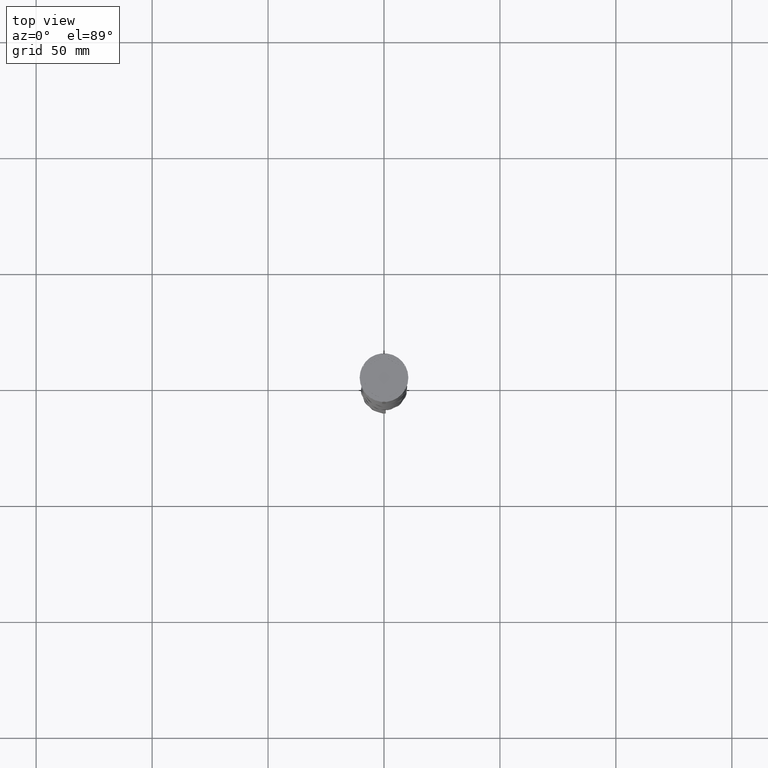
[diagram: clean part render]
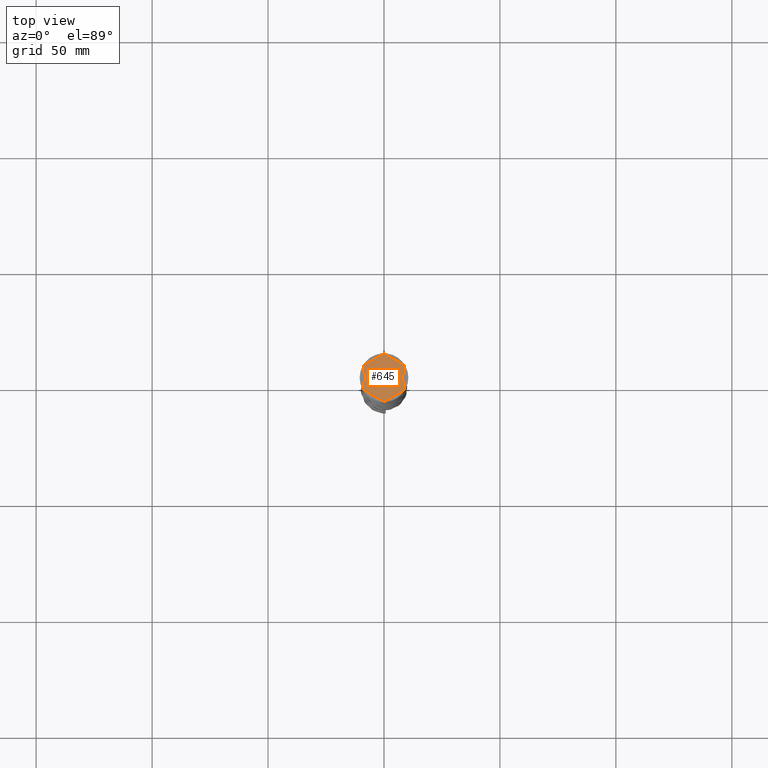
[diagram: same view with one face highlighted and labeled with its STEP entity id]
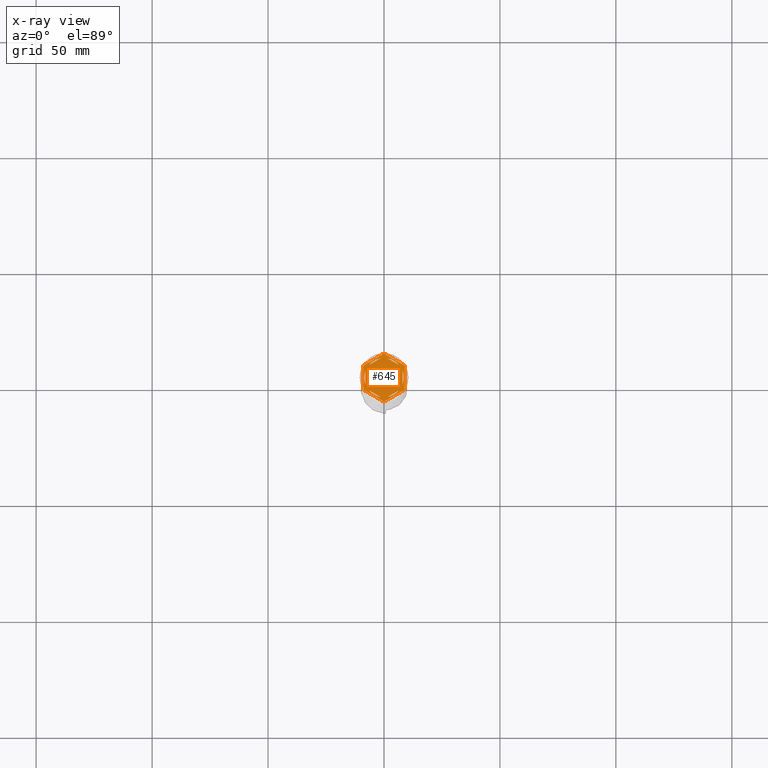
[diagram: x-ray of the same camera — body ghosted, the highlighted face saturated]
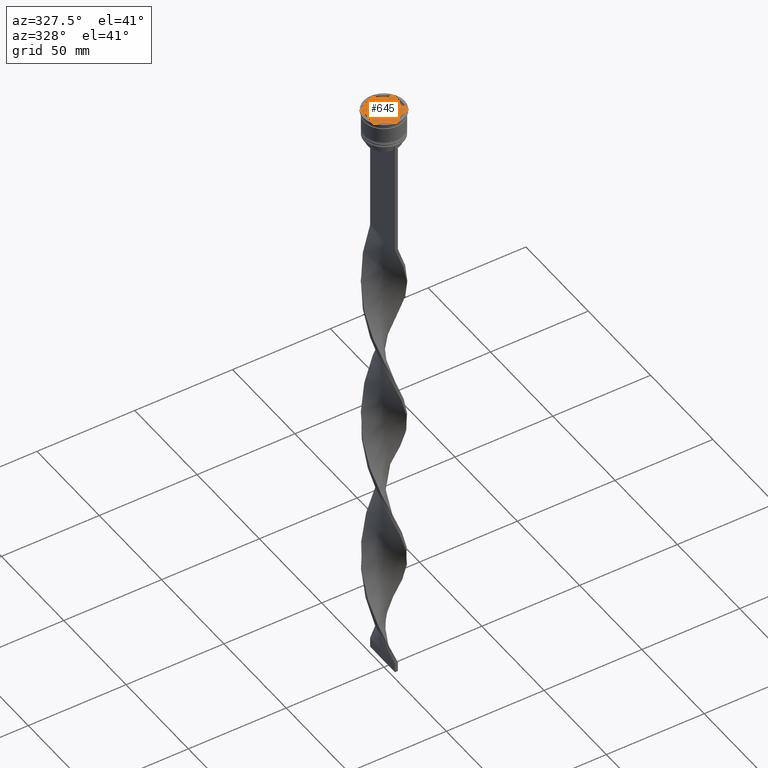
[diagram: same view with one face highlighted and labeled with its STEP entity id]
A machine part, top view. The second image highlights one B-rep face of the part: STEP entity #645.
The next image is the same camera in x-ray: the body ghosted, the highlighted face saturated — about 0% of this face is hidden behind the body in this view.
A second angle (auxiliary view) of the same face is appended — the face is thin or edge-on in the first view.
In plain terms, the highlighted planar face has unit normal (0, 0, 1).
Its self-contained STEP definition (entity closure, byte-faithful):
#31 = LINE ( 'NONE', #2955, #2202 ) ;
#69 = ORIENTED_EDGE ( 'NONE', *, *, #3822, .F. ) ;
#71 = CARTESIAN_POINT ( 'NONE',  ( 0.000000000000000000, 0.000000000000000000, -1.000000000000000000 ) ) ;
#96 = EDGE_CURVE ( 'NONE', #3479, #1577, #3279, .T. ) ;
#102 = ORIENTED_EDGE ( 'NONE', *, *, #3907, .F. ) ;
#154 = DIRECTION ( 'NONE',  ( 1.000000000000000000, 0.000000000000000000, 0.000000000000000000 ) ) ;
#172 = CARTESIAN_POINT ( 'NONE',  ( -6.487468592766553854, 5.492062568640999842, -1.000000000000000888 ) ) ;
#182 = AXIS2_PLACEMENT_3D ( 'NONE', #2193, #3522, #1894 ) ;
#195 = DIRECTION ( 'NONE',  ( 0.000000000000000000, 0.000000000000000000, 1.000000000000000000 ) ) ;
#199 = CARTESIAN_POINT ( 'NONE',  ( -9.000000000000001776, -4.799999999999988276, -1.000000000000000000 ) ) ;
#255 = CIRCLE ( 'NONE', #1655, 8.500000000000000000 ) ;
#263 = AXIS2_PLACEMENT_3D ( 'NONE', #3224, #3135, #323 ) ;
#323 = DIRECTION ( 'NONE',  ( 1.000000000000000000, 0.000000000000000000, 0.000000000000000000 ) ) ;
#386 = CIRCLE ( 'NONE', #2817, 10.19999999999999574 ) ;
#410 = ORIENTED_EDGE ( 'NONE', *, *, #1743, .T. ) ;
#421 = CARTESIAN_POINT ( 'NONE',  ( -0.3430780618347024080, -10.19422863405994306, -1.000000000000000000 ) ) ;
#427 = EDGE_LOOP ( 'NONE', ( #450, #69 ) ) ;
#445 = CIRCLE ( 'NONE', #3991, 10.19999999999999574 ) ;
#450 = ORIENTED_EDGE ( 'NONE', *, *, #2618, .F. ) ;
#470 = EDGE_LOOP ( 'NONE', ( #410, #2545, #2876, #3110, #785, #540, #3513, #811, #2384, #1127, #2350, #1813 ) ) ;
#485 = CARTESIAN_POINT ( 'NONE',  ( -8.000000000000000000, 2.872281323269016085, -1.000000000000000888 ) ) ;
#538 = CARTESIAN_POINT ( 'NONE',  ( 8.000000000000000000, -2.872281323269017417, -1.000000000000000888 ) ) ;
#540 = ORIENTED_EDGE ( 'NONE', *, *, #4193, .F. ) ;
#543 = ORIENTED_EDGE ( 'NONE', *, *, #2087, .F. ) ;
#562 = FACE_BOUND ( 'NONE', #427, .T. ) ;
#584 = ORIENTED_EDGE ( 'NONE', *, *, #1880, .F. ) ;
#636 = CARTESIAN_POINT ( 'NONE',  ( -9.000000000000001776, 5.196152422706632024, -1.000000000000000000 ) ) ;
#645 = ADVANCED_FACE ( 'NONE', ( #2826, #3812, #562, #1251, #2569, #3884, #848 ), #3482, .T. ) ;
#662 = CIRCLE ( 'NONE', #4191, 10.19999999999999574 ) ;
#704 = DIRECTION ( 'NONE',  ( 1.000000000000000000, 0.000000000000000000, 0.000000000000000000 ) ) ;
#723 = VECTOR ( 'NONE', #926, 1000.000000000000114 ) ;
#724 = LINE ( 'NONE', #3672, #4136 ) ;
#743 = CARTESIAN_POINT ( 'NONE',  ( 0.000000000000000000, 0.000000000000000000, -1.000000000000000000 ) ) ;
#746 = DIRECTION ( 'NONE',  ( 1.000000000000000000, 0.000000000000000000, 0.000000000000000000 ) ) ;
#761 = VERTEX_POINT ( 'NONE', #1765 ) ;
#785 = ORIENTED_EDGE ( 'NONE', *, *, #2449, .T. ) ;
#804 = EDGE_CURVE ( 'NONE', #4153, #4228, #3561, .T. ) ;
#811 = ORIENTED_EDGE ( 'NONE', *, *, #3122, .F. ) ;
#841 = EDGE_CURVE ( 'NONE', #4153, #2138, #889, .T. ) ;
#848 = FACE_OUTER_BOUND ( 'NONE', #470, .T. ) ;
#849 = LINE ( 'NONE', #3167, #1316 ) ;
#859 = VERTEX_POINT ( 'NONE', #1542 ) ;
#873 = VECTOR ( 'NONE', #1563, 1000.000000000000000 ) ;
#889 = LINE ( 'NONE', #1841, #873 ) ;
#914 = CARTESIAN_POINT ( 'NONE',  ( 0.000000000000000000, 0.000000000000000000, -1.000000000000000000 ) ) ;
#916 = LINE ( 'NONE', #1500, #3168 ) ;
#921 = EDGE_CURVE ( 'NONE', #3587, #2133, #1573, .T. ) ;
#922 = VERTEX_POINT ( 'NONE', #2679 ) ;
#926 = DIRECTION ( 'NONE',  ( 0.8660254037844385966, -0.4999999999999999445, 0.000000000000000000 ) ) ;
#948 = AXIS2_PLACEMENT_3D ( 'NONE', #1869, #1871, #154 ) ;
#976 = CARTESIAN_POINT ( 'NONE',  ( -9.000000000000001776, 4.799999999999988276, -1.000000000000000000 ) ) ;
#982 = LINE ( 'NONE', #3669, #3775 ) ;
#997 = EDGE_CURVE ( 'NONE', #2568, #922, #3582, .T. ) ;
#1018 = CIRCLE ( 'NONE', #3023, 8.500000000000000000 ) ;
#1020 = CARTESIAN_POINT ( 'NONE',  ( -1.512531407233448366, -8.364343891910017703, -1.000000000000000888 ) ) ;
#1027 = CARTESIAN_POINT ( 'NONE',  ( 1.512531407233448366, 8.364343891910017703, -1.000000000000000888 ) ) ;
#1030 = CIRCLE ( 'NONE', #2683, 8.500000000000000000 ) ;
#1064 = CARTESIAN_POINT ( 'NONE',  ( 8.656921938165297092, 5.394228634059953897, -1.000000000000000000 ) ) ;
#1127 = ORIENTED_EDGE ( 'NONE', *, *, #804, .F. ) ;
#1137 = ORIENTED_EDGE ( 'NONE', *, *, #4145, .F. ) ;
#1163 = VERTEX_POINT ( 'NONE', #976 ) ;
#1164 = DIRECTION ( 'NONE',  ( 1.000000000000000000, 0.000000000000000000, 0.000000000000000000 ) ) ;
#1251 = FACE_BOUND ( 'NONE', #3904, .T. ) ;
#1273 = VERTEX_POINT ( 'NONE', #2012 ) ;
#1290 = AXIS2_PLACEMENT_3D ( 'NONE', #1856, #195, #2029 ) ;
#1296 = AXIS2_PLACEMENT_3D ( 'NONE', #1773, #3756, #746 ) ;
#1316 = VECTOR ( 'NONE', #2951, 1000.000000000000000 ) ;
#1344 = EDGE_CURVE ( 'NONE', #1664, #3939, #4292, .T. ) ;
#1345 = DIRECTION ( 'NONE',  ( -1.877893248421449036E-16, -1.000000000000000000, 0.000000000000000000 ) ) ;
#1365 = EDGE_CURVE ( 'NONE', #3190, #2138, #445, .T. ) ;
#1372 = VECTOR ( 'NONE', #4213, 1000.000000000000114 ) ;
#1406 = DIRECTION ( 'NONE',  ( -0.000000000000000000, -0.000000000000000000, -1.000000000000000000 ) ) ;
#1500 = CARTESIAN_POINT ( 'NONE',  ( -8.673617379884035472E-16, -9.237604307034013473, -1.000000000000000888 ) ) ;
#1506 = EDGE_LOOP ( 'NONE', ( #1949, #543 ) ) ;
#1542 = CARTESIAN_POINT ( 'NONE',  ( -8.656921938165295316, -5.394228634059957450, -1.000000000000000000 ) ) ;
#1563 = DIRECTION ( 'NONE',  ( 0.8660254037844385966, 0.5000000000000001110, 0.000000000000000000 ) ) ;
#1573 = CIRCLE ( 'NONE', #1296, 8.500000000000000000 ) ;
#1577 = VERTEX_POINT ( 'NONE', #3695 ) ;
#1587 = AXIS2_PLACEMENT_3D ( 'NONE', #4187, #2156, #1164 ) ;
#1599 = ORIENTED_EDGE ( 'NONE', *, *, #96, .F. ) ;
#1608 = ORIENTED_EDGE ( 'NONE', *, *, #3963, .F. ) ;
#1633 = CARTESIAN_POINT ( 'NONE',  ( -0.3430780618347059052, 10.19422863405994306, -1.000000000000000000 ) ) ;
#1641 = DIRECTION ( 'NONE',  ( -0.8660254037844385966, 0.5000000000000000000, 0.000000000000000000 ) ) ;
#1655 = AXIS2_PLACEMENT_3D ( 'NONE', #3944, #2341, #3305 ) ;
#1664 = VERTEX_POINT ( 'NONE', #1064 ) ;
#1665 = DIRECTION ( 'NONE',  ( 1.000000000000000000, 0.000000000000000000, 0.000000000000000000 ) ) ;
#1688 = EDGE_CURVE ( 'NONE', #1664, #761, #1850, .T. ) ;
#1691 = VERTEX_POINT ( 'NONE', #2063 ) ;
#1693 = CARTESIAN_POINT ( 'NONE',  ( 0.3430780618347059052, -10.19422863405994306, -1.000000000000000000 ) ) ;
#1711 = ORIENTED_EDGE ( 'NONE', *, *, #3612, .F. ) ;
#1738 = VERTEX_POINT ( 'NONE', #1759 ) ;
#1743 = EDGE_CURVE ( 'NONE', #3190, #761, #2789, .T. ) ;
#1755 = VERTEX_POINT ( 'NONE', #2754 ) ;
#1759 = CARTESIAN_POINT ( 'NONE',  ( 1.512531407233452363, -8.364343891910017703, -1.000000000000000888 ) ) ;
#1765 = CARTESIAN_POINT ( 'NONE',  ( 9.000000000000001776, 4.799999999999988276, -1.000000000000000000 ) ) ;
#1767 = EDGE_CURVE ( 'NONE', #4057, #3939, #662, .T. ) ;
#1773 = CARTESIAN_POINT ( 'NONE',  ( 0.000000000000000000, 0.000000000000000000, -1.000000000000000000 ) ) ;
#1778 = VECTOR ( 'NONE', #2405, 1000.000000000000000 ) ;
#1795 = DIRECTION ( 'NONE',  ( -0.000000000000000000, -0.000000000000000000, -1.000000000000000000 ) ) ;
#1813 = ORIENTED_EDGE ( 'NONE', *, *, #1365, .F. ) ;
#1841 = CARTESIAN_POINT ( 'NONE',  ( 2.607697573705103160E-15, -10.39230484541326405, -1.000000000000000000 ) ) ;
#1850 = CIRCLE ( 'NONE', #3424, 10.19999999999999574 ) ;
#1855 = ORIENTED_EDGE ( 'NONE', *, *, #2767, .F. ) ;
#1856 = CARTESIAN_POINT ( 'NONE',  ( 0.000000000000000000, 0.000000000000000000, -1.000000000000000000 ) ) ;
#1869 = CARTESIAN_POINT ( 'NONE',  ( 0.000000000000000000, 0.000000000000000000, -1.000000000000000000 ) ) ;
#1871 = DIRECTION ( 'NONE',  ( -0.000000000000000000, -0.000000000000000000, -1.000000000000000000 ) ) ;
#1880 = EDGE_CURVE ( 'NONE', #922, #2568, #1018, .T. ) ;
#1894 = DIRECTION ( 'NONE',  ( 1.000000000000000000, 0.000000000000000000, 0.000000000000000000 ) ) ;
#1949 = ORIENTED_EDGE ( 'NONE', *, *, #3315, .F. ) ;
#1990 = EDGE_LOOP ( 'NONE', ( #584, #2960 ) ) ;
#1991 = DIRECTION ( 'NONE',  ( 0.000000000000000000, -1.000000000000000000, 0.000000000000000000 ) ) ;
#2012 = CARTESIAN_POINT ( 'NONE',  ( 8.000000000000000000, 2.872281323269014752, -1.000000000000000888 ) ) ;
#2029 = DIRECTION ( 'NONE',  ( 1.000000000000000000, 0.000000000000000000, -0.000000000000000000 ) ) ;
#2062 = CIRCLE ( 'NONE', #182, 8.500000000000000000 ) ;
#2063 = CARTESIAN_POINT ( 'NONE',  ( -8.656921938165297092, 5.394228634059953009, -1.000000000000000000 ) ) ;
#2087 = EDGE_CURVE ( 'NONE', #1273, #2410, #982, .T. ) ;
#2133 = VERTEX_POINT ( 'NONE', #1020 ) ;
#2138 = VERTEX_POINT ( 'NONE', #2600 ) ;
#2144 = CARTESIAN_POINT ( 'NONE',  ( -8.500000000000000000, 0.000000000000000000, -1.000000000000000000 ) ) ;
#2156 = DIRECTION ( 'NONE',  ( 0.000000000000000000, 0.000000000000000000, 1.000000000000000000 ) ) ;
#2165 = DIRECTION ( 'NONE',  ( 1.000000000000000000, 1.598721155460225418E-14, 0.000000000000000000 ) ) ;
#2193 = CARTESIAN_POINT ( 'NONE',  ( 0.000000000000000000, 0.000000000000000000, -1.000000000000000000 ) ) ;
#2202 = VECTOR ( 'NONE', #4027, 1000.000000000000000 ) ;
#2286 = CARTESIAN_POINT ( 'NONE',  ( 0.3430780618347050170, 10.19422863405994306, -1.000000000000000000 ) ) ;
#2341 = DIRECTION ( 'NONE',  ( 0.000000000000000000, 0.000000000000000000, 1.000000000000000000 ) ) ;
#2350 = ORIENTED_EDGE ( 'NONE', *, *, #841, .T. ) ;
#2353 = EDGE_LOOP ( 'NONE', ( #1711, #1608, #1855 ) ) ;
#2384 = ORIENTED_EDGE ( 'NONE', *, *, #3392, .T. ) ;
#2405 = DIRECTION ( 'NONE',  ( 0.000000000000000000, 1.000000000000000000, 0.000000000000000000 ) ) ;
#2410 = VERTEX_POINT ( 'NONE', #538 ) ;
#2449 = EDGE_CURVE ( 'NONE', #4057, #1691, #31, .T. ) ;
#2469 = DIRECTION ( 'NONE',  ( 1.000000000000000000, 0.000000000000000000, 0.000000000000000000 ) ) ;
#2479 = CIRCLE ( 'NONE', #3236, 10.19999999999999574 ) ;
#2545 = ORIENTED_EDGE ( 'NONE', *, *, #1688, .F. ) ;
#2561 = DIRECTION ( 'NONE',  ( 0.000000000000000000, 0.000000000000000000, 1.000000000000000000 ) ) ;
#2568 = VERTEX_POINT ( 'NONE', #1027 ) ;
#2569 = FACE_BOUND ( 'NONE', #2353, .T. ) ;
#2600 = CARTESIAN_POINT ( 'NONE',  ( 8.656921938165297092, -5.394228634059953009, -1.000000000000000000 ) ) ;
#2618 = EDGE_CURVE ( 'NONE', #1738, #2768, #2062, .T. ) ;
#2679 = CARTESIAN_POINT ( 'NONE',  ( 6.487468592766552078, 5.492062568641001619, -1.000000000000000888 ) ) ;
#2683 = AXIS2_PLACEMENT_3D ( 'NONE', #4232, #2961, #1665 ) ;
#2701 = CARTESIAN_POINT ( 'NONE',  ( 8.673617379884035472E-16, 9.237604307034013473, -1.000000000000000888 ) ) ;
#2733 = VECTOR ( 'NONE', #3336, 1000.000000000000114 ) ;
#2754 = CARTESIAN_POINT ( 'NONE',  ( -8.000000000000000000, -2.872281323269016085, -1.000000000000000888 ) ) ;
#2767 = EDGE_CURVE ( 'NONE', #3003, #1755, #255, .T. ) ;
#2768 = VERTEX_POINT ( 'NONE', #4007 ) ;
#2789 = LINE ( 'NONE', #4070, #1778 ) ;
#2817 = AXIS2_PLACEMENT_3D ( 'NONE', #743, #1795, #4019 ) ;
#2820 = DIRECTION ( 'NONE',  ( -0.000000000000000000, -0.000000000000000000, -1.000000000000000000 ) ) ;
#2826 = FACE_BOUND ( 'NONE', #1990, .T. ) ;
#2830 = CARTESIAN_POINT ( 'NONE',  ( -9.000000000000001776, -5.196152422706632912, -1.000000000000000000 ) ) ;
#2876 = ORIENTED_EDGE ( 'NONE', *, *, #1344, .T. ) ;
#2951 = DIRECTION ( 'NONE',  ( 0.000000000000000000, 1.000000000000000000, 0.000000000000000000 ) ) ;
#2955 = CARTESIAN_POINT ( 'NONE',  ( 0.000000000000000000, 10.39230484541326582, -1.000000000000000000 ) ) ;
#2960 = ORIENTED_EDGE ( 'NONE', *, *, #997, .F. ) ;
#2961 = DIRECTION ( 'NONE',  ( 0.000000000000000000, 0.000000000000000000, 1.000000000000000000 ) ) ;
#3003 = VERTEX_POINT ( 'NONE', #2144 ) ;
#3023 = AXIS2_PLACEMENT_3D ( 'NONE', #3500, #2561, #3824 ) ;
#3110 = ORIENTED_EDGE ( 'NONE', *, *, #1767, .F. ) ;
#3115 = CARTESIAN_POINT ( 'NONE',  ( 0.000000000000000000, 0.000000000000000000, -1.000000000000000000 ) ) ;
#3122 = EDGE_CURVE ( 'NONE', #859, #3417, #386, .T. ) ;
#3125 = LINE ( 'NONE', #2830, #1372 ) ;
#3135 = DIRECTION ( 'NONE',  ( 0.000000000000000000, 0.000000000000000000, 1.000000000000000000 ) ) ;
#3154 = DIRECTION ( 'NONE',  ( -0.000000000000000000, -0.000000000000000000, -1.000000000000000000 ) ) ;
#3167 = CARTESIAN_POINT ( 'NONE',  ( -8.000000000000000000, 4.618802153517004072, -1.000000000000000888 ) ) ;
#3168 = VECTOR ( 'NONE', #4137, 1000.000000000000114 ) ;
#3190 = VERTEX_POINT ( 'NONE', #3773 ) ;
#3224 = CARTESIAN_POINT ( 'NONE',  ( 0.000000000000000000, 0.000000000000000000, -1.000000000000000000 ) ) ;
#3235 = CARTESIAN_POINT ( 'NONE',  ( -6.487468592766552078, -5.492062568641001619, -1.000000000000000888 ) ) ;
#3236 = AXIS2_PLACEMENT_3D ( 'NONE', #71, #1406, #704 ) ;
#3279 = LINE ( 'NONE', #2701, #2733 ) ;
#3305 = DIRECTION ( 'NONE',  ( 1.000000000000000000, 0.000000000000000000, 0.000000000000000000 ) ) ;
#3315 = EDGE_CURVE ( 'NONE', #2410, #1273, #4202, .T. ) ;
#3336 = DIRECTION ( 'NONE',  ( 0.8660254037844384856, 0.5000000000000003331, -0.000000000000000000 ) ) ;
#3392 = EDGE_CURVE ( 'NONE', #859, #4228, #3125, .T. ) ;
#3417 = VERTEX_POINT ( 'NONE', #199 ) ;
#3424 = AXIS2_PLACEMENT_3D ( 'NONE', #3115, #3435, #2469 ) ;
#3435 = DIRECTION ( 'NONE',  ( -0.000000000000000000, -0.000000000000000000, -1.000000000000000000 ) ) ;
#3462 = ORIENTED_EDGE ( 'NONE', *, *, #921, .F. ) ;
#3479 = VERTEX_POINT ( 'NONE', #172 ) ;
#3482 = PLANE ( 'NONE',  #1290 ) ;
#3500 = CARTESIAN_POINT ( 'NONE',  ( 0.000000000000000000, 0.000000000000000000, -1.000000000000000000 ) ) ;
#3513 = ORIENTED_EDGE ( 'NONE', *, *, #3590, .T. ) ;
#3522 = DIRECTION ( 'NONE',  ( 0.000000000000000000, 0.000000000000000000, 1.000000000000000000 ) ) ;
#3533 = CARTESIAN_POINT ( 'NONE',  ( 8.000000000000000000, 4.618802153517006737, -1.000000000000000888 ) ) ;
#3561 = CIRCLE ( 'NONE', #948, 10.19999999999999574 ) ;
#3582 = LINE ( 'NONE', #3533, #723 ) ;
#3587 = VERTEX_POINT ( 'NONE', #3235 ) ;
#3590 = EDGE_CURVE ( 'NONE', #1163, #3417, #3602, .T. ) ;
#3602 = LINE ( 'NONE', #636, #3716 ) ;
#3612 = EDGE_CURVE ( 'NONE', #3703, #3003, #1030, .T. ) ;
#3669 = CARTESIAN_POINT ( 'NONE',  ( 7.999999999999998224, -4.618802153517008513, -1.000000000000000888 ) ) ;
#3672 = CARTESIAN_POINT ( 'NONE',  ( -8.000000000000000000, -4.618802153517006737, -1.000000000000000888 ) ) ;
#3695 = CARTESIAN_POINT ( 'NONE',  ( -1.512531407233451475, 8.364343891910017703, -1.000000000000000888 ) ) ;
#3703 = VERTEX_POINT ( 'NONE', #485 ) ;
#3716 = VECTOR ( 'NONE', #1991, 1000.000000000000000 ) ;
#3738 = DIRECTION ( 'NONE',  ( -0.8660254037844385966, 0.4999999999999999445, 0.000000000000000000 ) ) ;
#3745 = DIRECTION ( 'NONE',  ( 1.000000000000000000, 8.881784197001252323E-16, 0.000000000000000000 ) ) ;
#3756 = DIRECTION ( 'NONE',  ( 0.000000000000000000, 0.000000000000000000, 1.000000000000000000 ) ) ;
#3773 = CARTESIAN_POINT ( 'NONE',  ( 9.000000000000001776, -4.799999999999988276, -1.000000000000000000 ) ) ;
#3775 = VECTOR ( 'NONE', #1345, 1000.000000000000000 ) ;
#3812 = FACE_BOUND ( 'NONE', #1506, .T. ) ;
#3822 = EDGE_CURVE ( 'NONE', #2768, #1738, #916, .T. ) ;
#3824 = DIRECTION ( 'NONE',  ( 1.000000000000000000, 0.000000000000000000, 0.000000000000000000 ) ) ;
#3884 = FACE_BOUND ( 'NONE', #4142, .T. ) ;
#3904 = EDGE_LOOP ( 'NONE', ( #3462, #1137 ) ) ;
#3907 = EDGE_CURVE ( 'NONE', #1577, #3479, #4003, .T. ) ;
#3939 = VERTEX_POINT ( 'NONE', #2286 ) ;
#3944 = CARTESIAN_POINT ( 'NONE',  ( 0.000000000000000000, 0.000000000000000000, -1.000000000000000000 ) ) ;
#3963 = EDGE_CURVE ( 'NONE', #1755, #3703, #849, .T. ) ;
#3991 = AXIS2_PLACEMENT_3D ( 'NONE', #4091, #2820, #3745 ) ;
#3993 = CARTESIAN_POINT ( 'NONE',  ( 9.000000000000001776, 5.196152422706632912, -1.000000000000000000 ) ) ;
#4003 = CIRCLE ( 'NONE', #263, 8.500000000000000000 ) ;
#4007 = CARTESIAN_POINT ( 'NONE',  ( 6.487468592766547637, -5.492062568641006060, -1.000000000000000888 ) ) ;
#4019 = DIRECTION ( 'NONE',  ( 1.000000000000000000, 0.000000000000000000, 0.000000000000000000 ) ) ;
#4027 = DIRECTION ( 'NONE',  ( -0.8660254037844385966, -0.5000000000000001110, 0.000000000000000000 ) ) ;
#4057 = VERTEX_POINT ( 'NONE', #1633 ) ;
#4070 = CARTESIAN_POINT ( 'NONE',  ( 9.000000000000001776, -5.196152422706632024, -1.000000000000000000 ) ) ;
#4091 = CARTESIAN_POINT ( 'NONE',  ( 0.000000000000000000, 0.000000000000000000, -1.000000000000000000 ) ) ;
#4136 = VECTOR ( 'NONE', #3738, 1000.000000000000114 ) ;
#4137 = DIRECTION ( 'NONE',  ( -0.8660254037844387076, -0.4999999999999998335, 0.000000000000000000 ) ) ;
#4142 = EDGE_LOOP ( 'NONE', ( #102, #1599 ) ) ;
#4145 = EDGE_CURVE ( 'NONE', #2133, #3587, #724, .T. ) ;
#4153 = VERTEX_POINT ( 'NONE', #1693 ) ;
#4187 = CARTESIAN_POINT ( 'NONE',  ( 0.000000000000000000, 0.000000000000000000, -1.000000000000000000 ) ) ;
#4188 = VECTOR ( 'NONE', #1641, 1000.000000000000227 ) ;
#4191 = AXIS2_PLACEMENT_3D ( 'NONE', #914, #3154, #2165 ) ;
#4193 = EDGE_CURVE ( 'NONE', #1163, #1691, #2479, .T. ) ;
#4202 = CIRCLE ( 'NONE', #1587, 8.500000000000000000 ) ;
#4213 = DIRECTION ( 'NONE',  ( 0.8660254037844387076, -0.4999999999999997224, 0.000000000000000000 ) ) ;
#4228 = VERTEX_POINT ( 'NONE', #421 ) ;
#4232 = CARTESIAN_POINT ( 'NONE',  ( 0.000000000000000000, 0.000000000000000000, -1.000000000000000000 ) ) ;
#4292 = LINE ( 'NONE', #3993, #4188 ) ;